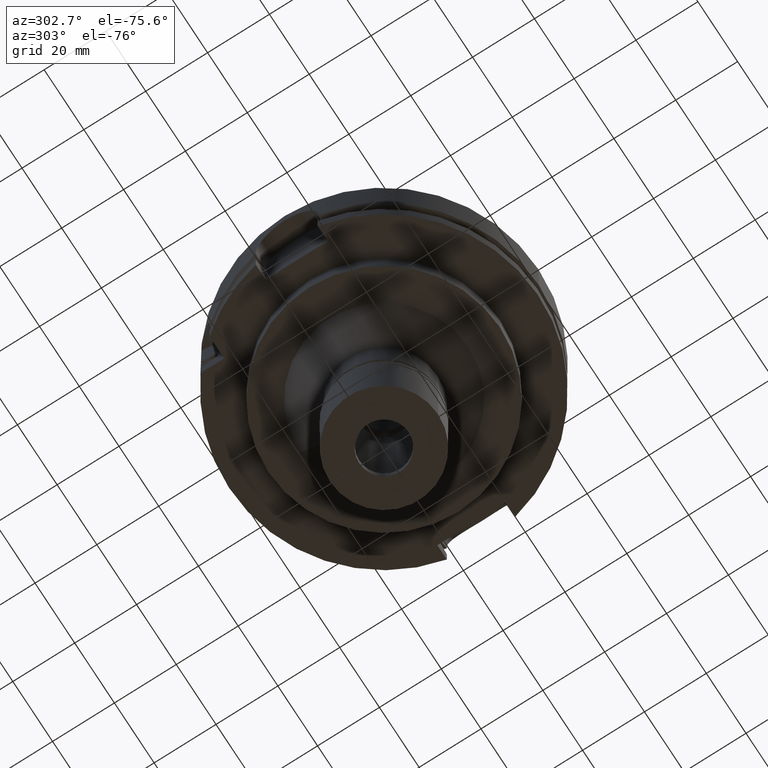
[diagram: clean part render]
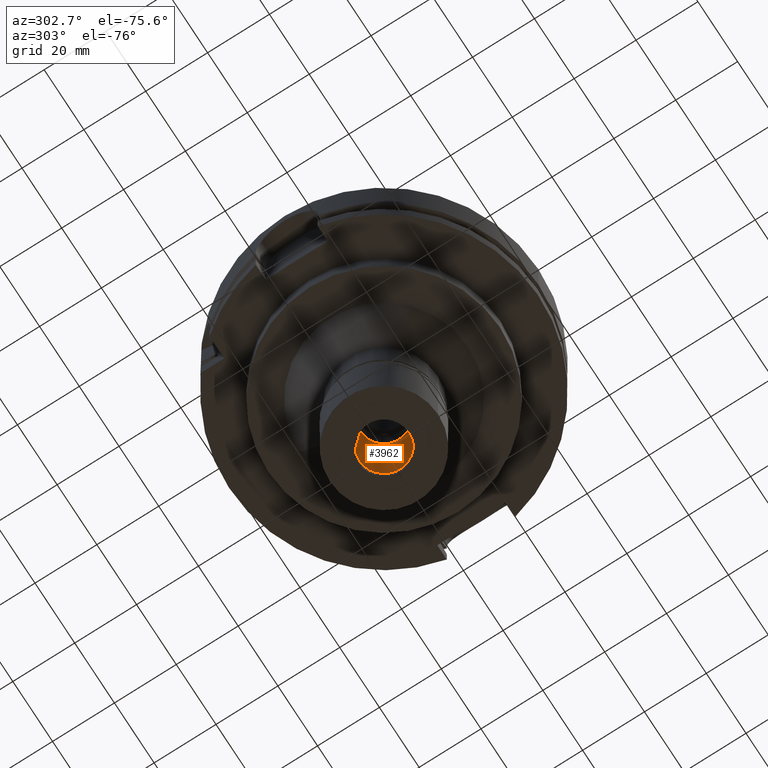
[diagram: same view with one face highlighted and labeled with its STEP entity id]
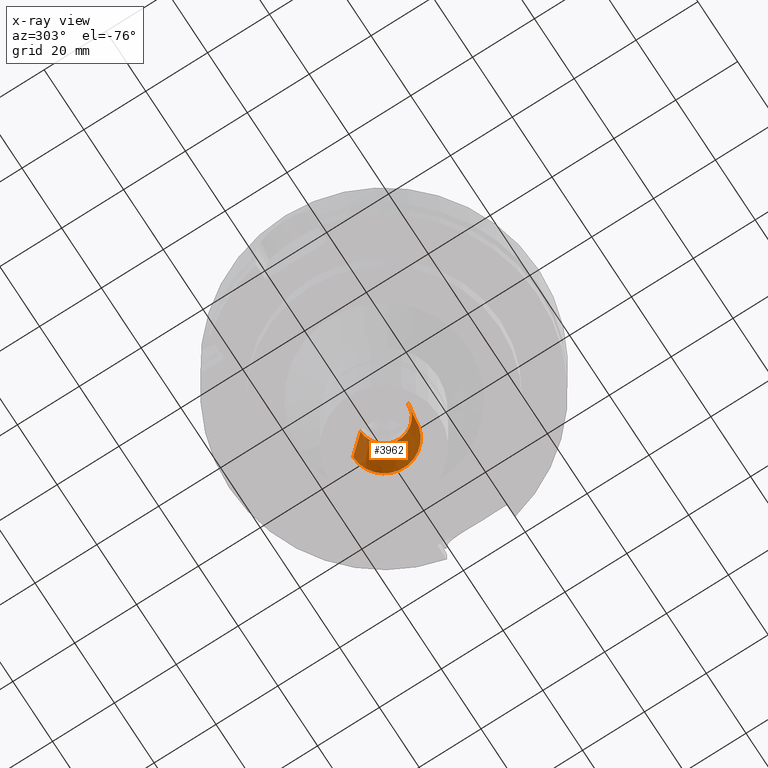
[diagram: x-ray of the same camera — body ghosted, the highlighted face saturated]
A machine part, auxiliary view. The second image highlights one B-rep face of the part: STEP entity #3962.
The next image is the same camera in x-ray: the body ghosted, the highlighted face saturated — about 6% of this face is hidden behind the body in this view.
In plain terms, the highlighted conical surface has half-angle 6 deg.
Its self-contained STEP definition (entity closure, byte-faithful):
#51 = ORIENTED_EDGE ( 'NONE', *, *, #3581, .T. ) ;
#119 = DIRECTION ( 'NONE',  ( 0.0000000000000000000, 0.0000000000000000000, 1.000000000000000000 ) ) ;
#544 = CARTESIAN_POINT ( 'NONE',  ( 0.0000000000000000000, 10.00000000000000000, -79.00000000000000000 ) ) ;
#721 = LINE ( 'NONE', #1949, #3184 ) ;
#1027 = DIRECTION ( 'NONE',  ( 0.0000000000000000000, -0.1045284632676965891, 0.9945218953682687379 ) ) ;
#1044 = CARTESIAN_POINT ( 'NONE',  ( 0.0000000000000000000, 7.582602588890000384, -56.00000000000000000 ) ) ;
#1171 = DIRECTION ( 'NONE',  ( 0.0000000000000000000, 0.0000000000000000000, -1.000000000000000000 ) ) ;
#1354 = ORIENTED_EDGE ( 'NONE', *, *, #2794, .T. ) ;
#1623 = ORIENTED_EDGE ( 'NONE', *, *, #4420, .F. ) ;
#1811 = DIRECTION ( 'NONE',  ( 0.0000000000000000000, -1.000000000000000000, 0.0000000000000000000 ) ) ;
#1880 = DIRECTION ( 'NONE',  ( 0.0000000000000000000, 1.000000000000000000, 0.0000000000000000000 ) ) ;
#1949 = CARTESIAN_POINT ( 'NONE',  ( 0.0000000000000000000, 10.00000000000000000, -79.00000000000000000 ) ) ;
#2089 = VERTEX_POINT ( 'NONE', #5386 ) ;
#2127 = ORIENTED_EDGE ( 'NONE', *, *, #2147, .T. ) ;
#2147 = EDGE_CURVE ( 'NONE', #5423, #3329, #3105, .T. ) ;
#2457 = DIRECTION ( 'NONE',  ( 0.0000000000000000000, -1.000000000000000000, 0.0000000000000000000 ) ) ;
#2552 = CARTESIAN_POINT ( 'NONE',  ( 0.0000000000000000000, -10.00000000000000000, -79.00000000000000000 ) ) ;
#2578 = CARTESIAN_POINT ( 'NONE',  ( 0.0000000000000000000, 0.0000000000000000000, -56.00000000000000000 ) ) ;
#2794 = EDGE_CURVE ( 'NONE', #3329, #2089, #3853, .T. ) ;
#3105 = CIRCLE ( 'NONE', #5444, 10.00000000000000000 ) ;
#3181 = DIRECTION ( 'NONE',  ( 0.0000000000000000000, 0.0000000000000000000, -1.000000000000000000 ) ) ;
#3184 = VECTOR ( 'NONE', #1027, 1000.000000000000227 ) ;
#3215 = CARTESIAN_POINT ( 'NONE',  ( 0.0000000000000000000, 0.0000000000000000000, -79.00000000000000000 ) ) ;
#3329 = VERTEX_POINT ( 'NONE', #2552 ) ;
#3490 = CARTESIAN_POINT ( 'NONE',  ( 0.0000000000000000000, -10.00000000000000000, -79.00000000000000000 ) ) ;
#3581 = EDGE_CURVE ( 'NONE', #2089, #4626, #5001, .T. ) ;
#3853 = LINE ( 'NONE', #3490, #3927 ) ;
#3927 = VECTOR ( 'NONE', #4723, 1000.000000000000227 ) ;
#3962 = ADVANCED_FACE ( 'NONE', ( #5029 ), #4982, .F. ) ;
#4027 = AXIS2_PLACEMENT_3D ( 'NONE', #2578, #119, #1811 ) ;
#4194 = CARTESIAN_POINT ( 'NONE',  ( 0.0000000000000000000, 0.0000000000000000000, -67.50000000000000000 ) ) ;
#4269 = AXIS2_PLACEMENT_3D ( 'NONE', #4194, #1171, #2457 ) ;
#4420 = EDGE_CURVE ( 'NONE', #5423, #4626, #721, .T. ) ;
#4626 = VERTEX_POINT ( 'NONE', #1044 ) ;
#4658 = EDGE_LOOP ( 'NONE', ( #2127, #1354, #51, #1623 ) ) ;
#4723 = DIRECTION ( 'NONE',  ( 0.0000000000000000000, 0.1045284632676965891, 0.9945218953682687379 ) ) ;
#4982 = CONICAL_SURFACE ( 'NONE', #4269, 8.791301294444998859, 0.1047197551196402399 ) ;
#5001 = CIRCLE ( 'NONE', #4027, 7.582602588890000384 ) ;
#5029 = FACE_OUTER_BOUND ( 'NONE', #4658, .T. ) ;
#5386 = CARTESIAN_POINT ( 'NONE',  ( 0.0000000000000000000, -7.582602588890000384, -56.00000000000000000 ) ) ;
#5423 = VERTEX_POINT ( 'NONE', #544 ) ;
#5444 = AXIS2_PLACEMENT_3D ( 'NONE', #3215, #3181, #1880 ) ;